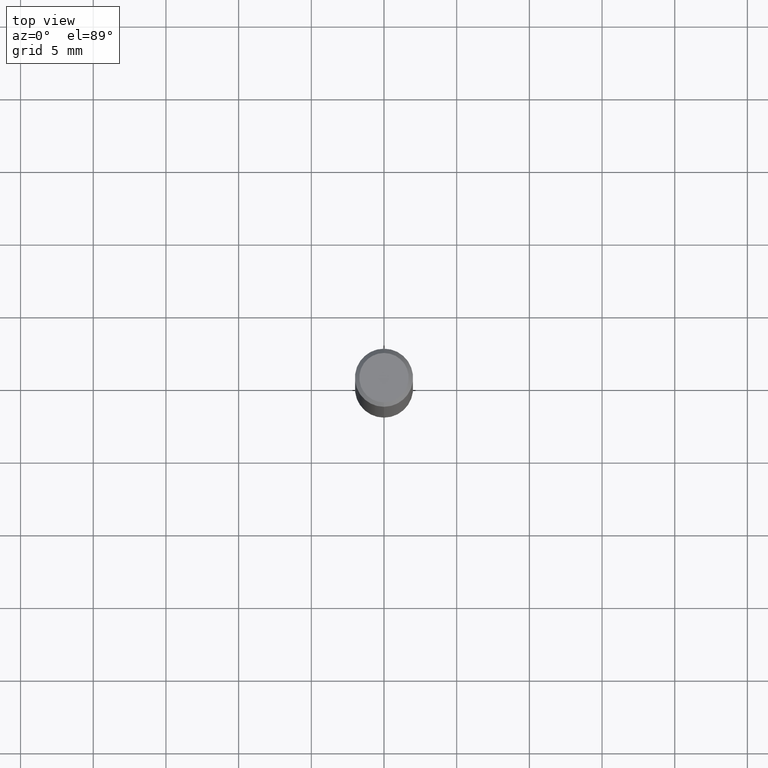
[diagram: clean part render]
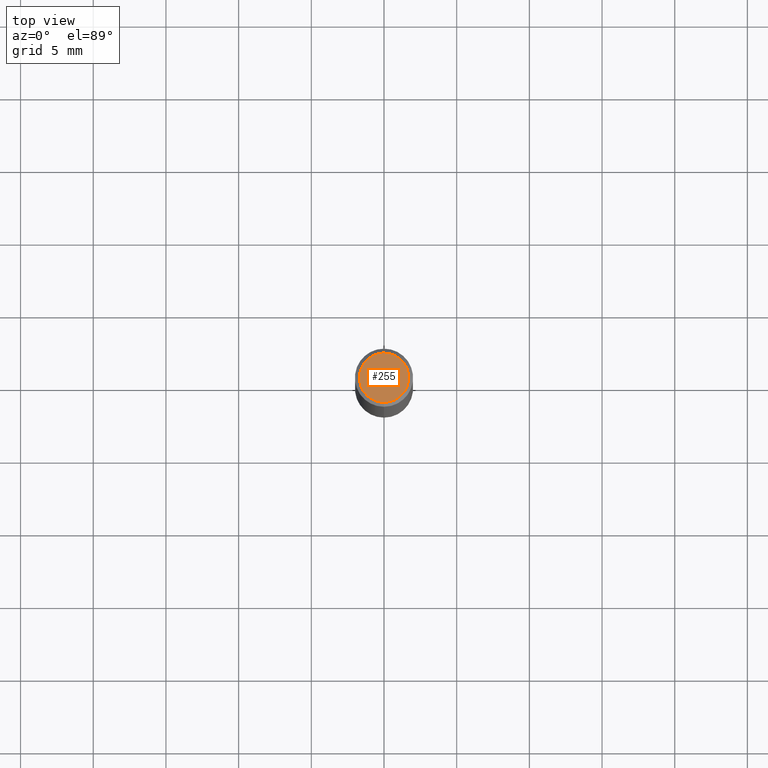
[diagram: same view with one face highlighted and labeled with its STEP entity id]
A machine part, top view. The second image highlights one B-rep face of the part: STEP entity #255.
In plain terms, the highlighted planar face has unit normal (-0, 0, 1).
Its self-contained STEP definition (entity closure, byte-faithful):
#191=EDGE_CURVE('',#339,#275,#434,.T.);
#229=EDGE_CURVE('',#275,#339,#476,.T.);
#255=ADVANCED_FACE('',(#507),#508,.T.);
#275=VERTEX_POINT('',#529);
#339=VERTEX_POINT('',#601);
#434=CIRCLE('',#711,1.7);
#476=CIRCLE('',#761,1.7);
#507=FACE_OUTER_BOUND('',#800,.T.);
#508=PLANE('',#801);
#529=CARTESIAN_POINT('',(0.0,1.7,0.00999999999999801));
#601=CARTESIAN_POINT('',(2.08183080149804E-016,-1.7,0.00999999999999801));
#711=AXIS2_PLACEMENT_3D('',#1032,#1033,#1034);
#761=AXIS2_PLACEMENT_3D('',#1087,#1088,#1089);
#800=EDGE_LOOP('',(#1132,#1133));
#801=AXIS2_PLACEMENT_3D('',#1134,#1135,#1136);
#1032=CARTESIAN_POINT('',(0.0,0.0,0.00999999999999801));
#1033=DIRECTION('',(0.0,0.0,-1.0));
#1034=DIRECTION('',(0.0,1.0,0.0));
#1087=CARTESIAN_POINT('',(0.0,0.0,0.00999999999999801));
#1088=DIRECTION('',(0.0,0.0,-1.0));
#1089=DIRECTION('',(0.0,1.0,0.0));
#1132=ORIENTED_EDGE('',*,*,#229,.F.);
#1133=ORIENTED_EDGE('',*,*,#191,.F.);
#1134=CARTESIAN_POINT('',(0.0,0.85,0.00999999999999801));
#1135=DIRECTION('',(-0.0,0.0,1.0));
#1136=DIRECTION('',(0.0,-1.0,0.0));